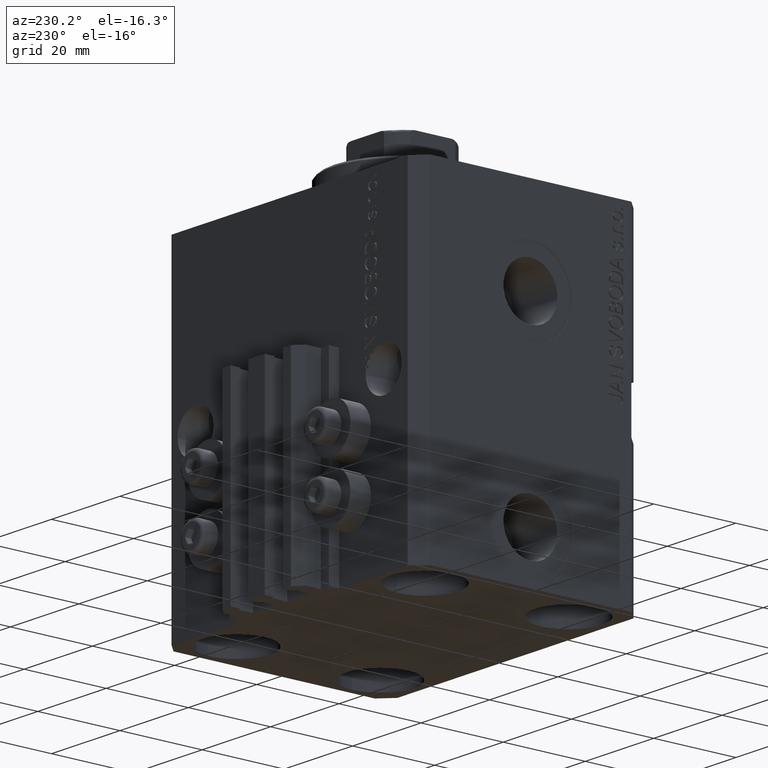
[diagram: clean part render]
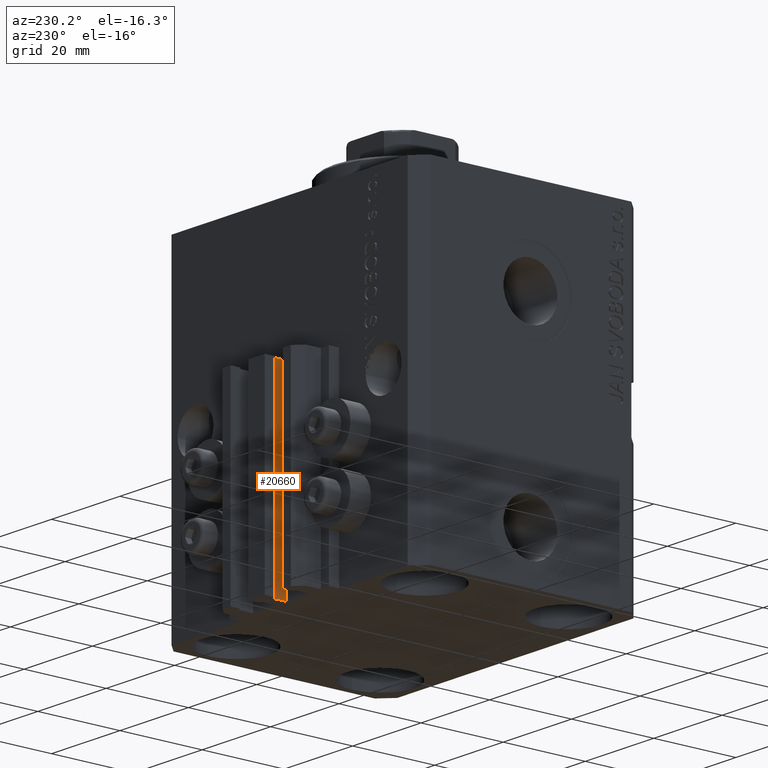
[diagram: same view with one face highlighted and labeled with its STEP entity id]
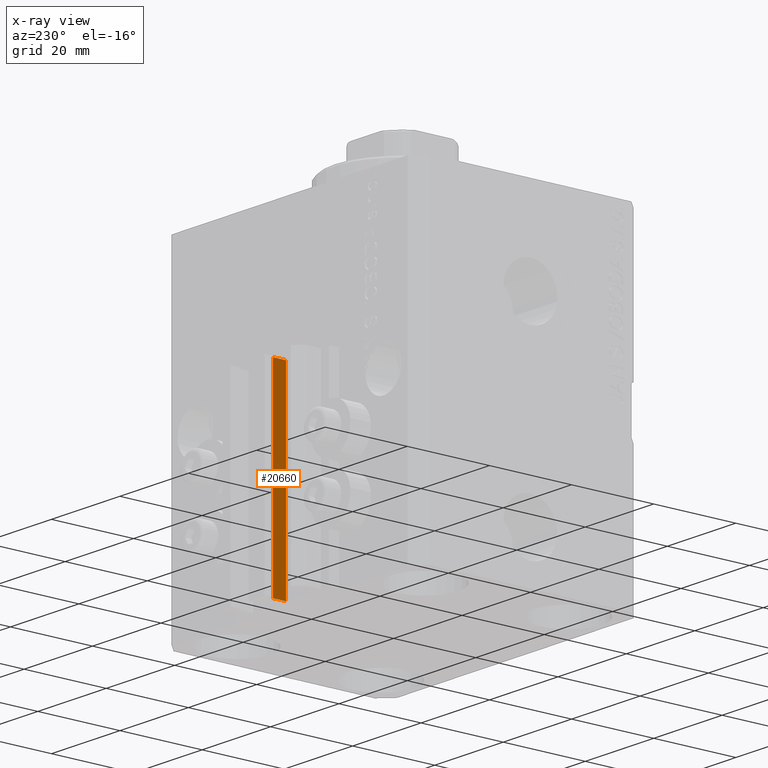
[diagram: x-ray of the same camera — body ghosted, the highlighted face saturated]
A machine part, auxiliary view. The second image highlights one B-rep face of the part: STEP entity #20660.
The next image is the same camera in x-ray: the body ghosted, the highlighted face saturated — about 0% of this face is hidden behind the body in this view.
In plain terms, the highlighted planar face has unit normal (-1, 0, 0).
Its self-contained STEP definition (entity closure, byte-faithful):
#2828 = VERTEX_POINT ( 'NONE', #20069 ) ;
#6430 = CARTESIAN_POINT ( 'NONE',  ( -1.599999999999997868, 32.90000000000001279, -80.00000000000000000 ) ) ;
#7955 = VERTEX_POINT ( 'NONE', #23027 ) ;
#8580 = DIRECTION ( 'NONE',  ( -6.776263578034378061E-17, -1.000000000000000000, 0.000000000000000000 ) ) ;
#8720 = EDGE_CURVE ( 'NONE', #29160, #7955, #19528, .T. ) ;
#8988 = VECTOR ( 'NONE', #37209, 1000.000000000000000 ) ;
#10397 = VERTEX_POINT ( 'NONE', #46179 ) ;
#11144 = LINE ( 'NONE', #6430, #11368 ) ;
#11368 = VECTOR ( 'NONE', #36262, 1000.000000000000000 ) ;
#12601 = CARTESIAN_POINT ( 'NONE',  ( -1.600000000000000533, 32.90000000000001279, -80.00000000000000000 ) ) ;
#13019 = EDGE_LOOP ( 'NONE', ( #27161, #38180, #36939, #17074 ) ) ;
#13918 = DIRECTION ( 'NONE',  ( -6.776263578034378061E-17, -1.000000000000000000, 0.000000000000000000 ) ) ;
#15417 = CARTESIAN_POINT ( 'NONE',  ( -1.600000000000000755, 29.69999999999999929, -80.00000000000000000 ) ) ;
#16147 = PLANE ( 'NONE',  #23853 ) ;
#17074 = ORIENTED_EDGE ( 'NONE', *, *, #30649, .T. ) ;
#18574 = LINE ( 'NONE', #29476, #26583 ) ;
#19528 = LINE ( 'NONE', #30659, #28781 ) ;
#20069 = CARTESIAN_POINT ( 'NONE',  ( -1.600000000000000755, 29.69999999999999929, -80.00000000000000000 ) ) ;
#20660 = ADVANCED_FACE ( 'NONE', ( #41019 ), #16147, .T. ) ;
#22757 = LINE ( 'NONE', #15417, #8988 ) ;
#23027 = CARTESIAN_POINT ( 'NONE',  ( -1.600000000000000755, 29.69999999999999929, -33.00000000000000000 ) ) ;
#23853 = AXIS2_PLACEMENT_3D ( 'NONE', #12601, #33684, #8580 ) ;
#26583 = VECTOR ( 'NONE', #13918, 1000.000000000000000 ) ;
#27161 = ORIENTED_EDGE ( 'NONE', *, *, #8720, .F. ) ;
#28781 = VECTOR ( 'NONE', #40608, 1000.000000000000000 ) ;
#29160 = VERTEX_POINT ( 'NONE', #29449 ) ;
#29449 = CARTESIAN_POINT ( 'NONE',  ( -1.599999999999997868, 32.90000000000001279, -33.00000000000000000 ) ) ;
#29476 = CARTESIAN_POINT ( 'NONE',  ( -1.600000000000000533, 32.90000000000001279, -80.00000000000000000 ) ) ;
#30649 = EDGE_CURVE ( 'NONE', #2828, #7955, #22757, .T. ) ;
#30659 = CARTESIAN_POINT ( 'NONE',  ( -1.600000000000000533, 32.90000000000001279, -33.00000000000000000 ) ) ;
#33684 = DIRECTION ( 'NONE',  ( -1.000000000000000000, 6.776263578034378061E-17, 0.000000000000000000 ) ) ;
#36262 = DIRECTION ( 'NONE',  ( 0.000000000000000000, 0.000000000000000000, 1.000000000000000000 ) ) ;
#36939 = ORIENTED_EDGE ( 'NONE', *, *, #46368, .T. ) ;
#37209 = DIRECTION ( 'NONE',  ( 0.000000000000000000, 0.000000000000000000, 1.000000000000000000 ) ) ;
#38180 = ORIENTED_EDGE ( 'NONE', *, *, #43309, .F. ) ;
#40608 = DIRECTION ( 'NONE',  ( -6.776263578034378061E-17, -1.000000000000000000, 0.000000000000000000 ) ) ;
#41019 = FACE_OUTER_BOUND ( 'NONE', #13019, .T. ) ;
#43309 = EDGE_CURVE ( 'NONE', #10397, #29160, #11144, .T. ) ;
#46179 = CARTESIAN_POINT ( 'NONE',  ( -1.599999999999997868, 32.90000000000001279, -80.00000000000000000 ) ) ;
#46368 = EDGE_CURVE ( 'NONE', #10397, #2828, #18574, .T. ) ;